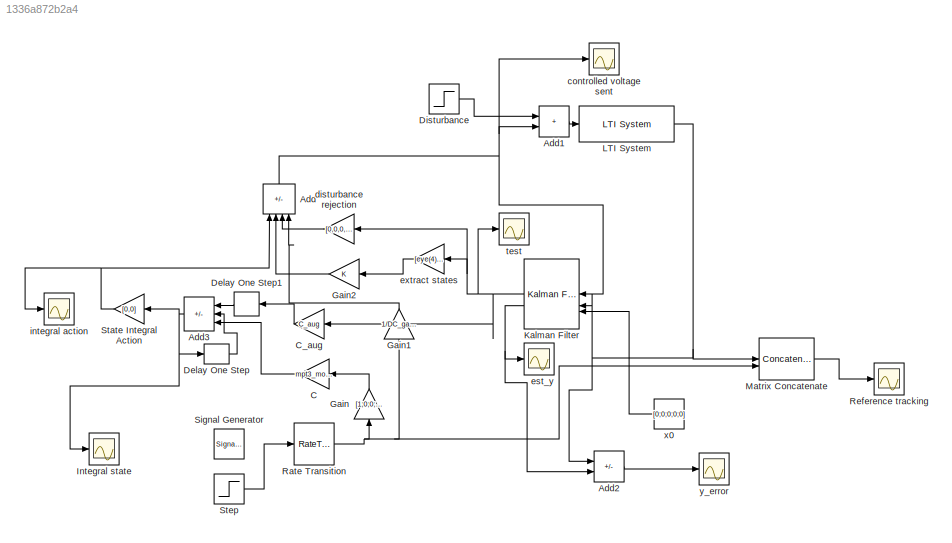
MODEL slx_1336a872b2a4
KIND model
CONFIG AbsTol = auto
CONFIG EnableMultiTasking = on
CONFIG FixedStep = 0.01
CONFIG MaxStep = auto
CONFIG MinStep = auto
CONFIG RelTol = 1e-3
CONFIG SampleTimeConstraint = Unconstrained
CONFIG SolverName = FixedStepDiscrete
CONFIG StartTime = 0.0
CONFIG StopTime = 200
BLOCK [Sum] Add
  IconShape = rectangular
  Inputs = ---+
  NameLocation = left
BLOCK [Sum] Add1
  IconShape = rectangular
BLOCK [Sum] Add2
  IconShape = rectangular
  Inputs = +-
BLOCK [Sum] Add3
  IconShape = rectangular
  Inputs = ++-
  NameLocation = top
BLOCK [Gain] C
  Gain = mpt3_model.C
  Multiplication = Matrix(K*u)
BLOCK [Gain] C_aug
  Gain = C_aug
  Multiplication = Matrix(K*u)
BLOCK [Delay] Delay One Step
  DelayLength = 1
  InputPortMap = u0
  SampleTime = h
BLOCK [Delay] Delay One Step1
  DelayLength = 1
  InputPortMap = u0
  SampleTime = h
BLOCK [Step] Disturbance
  After = 0
  SampleTime = 0
  Time = 3
BLOCK [Gain] Gain
  Gain = [1;0;0;0]
  NameLocation = right
BLOCK [Gain] Gain1
  Gain = 1/DC_gain(1)
  NameLocation = right
BLOCK [Gain] Gain2
  Gain = K
  Multiplication = Matrix(K*u)
BLOCK [Scope] Integral state 
  Floating = off
  NumInputPorts = 1
  ScopeSpecificationString = Simulink.scopes.TimeScopeBlockCfg('CurrentConfiguration', extmgr.ConfigurationSet(extmgr.Configuration('Core','General UI',true),extmgr.Configuration('Core','Source UI',true),extmgr.Configuration('Sources','WiredSimulink',true,'DataLoggingVariableName','ScopeData3'),extmgr.Configuration('Visuals','Time Domain',true,'SerializedDisplays',{struct('MinYLimReal','-1376.3794','MaxYLimReal','152.93104','...<+1533ch>
BLOCK [Reference] Kalman Filter  REF=ctrlSharedLib/Kalman Filter
  SourceBlock = ctrlSharedLib/Kalman Filter
  SourceType = ctrlKalmanFilter
BLOCK [Reference] LTI System  REF=cstblocks/LTI System
  SourceBlock = cstblocks/LTI System
  SourceType = LTI Block
BLOCK [Concatenate] Matrix Concatenate
  ConcatenateDimension = 2
  NameLocation = top
BLOCK [RateTransition] Rate Transition
  OutPortSampleTime = h
BLOCK [Scope] Reference tracking
  Floating = off
  NumInputPorts = 1
  ScopeSpecificationString = Simulink.scopes.TimeScopeBlockCfg('CurrentConfiguration', extmgr.ConfigurationSet(extmgr.Configuration('Core','General UI',true),extmgr.Configuration('Core','Source UI',true),extmgr.Configuration('Sources','WiredSimulink',true,'DataLoggingVariableName','ScopeData1'),extmgr.Configuration('Visuals','Time Domain',true,'SerializedDisplays',{struct('MinYLimReal','-0.77861','MaxYLimReal','1.19762','YLab...<+1566ch>
BLOCK [SignalGenerator] Signal Generator
  Amplitude = pi/6
  Frequency = 0.02
  WaveForm = square
BLOCK [Gain] State Integral Action
  Gain = [0,0]
  Multiplication = Matrix(K*u)
BLOCK [Step] Step
  SampleTime = 0
  Time = 5
BLOCK [Scope] controlled voltage sent
  Floating = off
  NumInputPorts = 1
  ScopeSpecificationString = Simulink.scopes.TimeScopeBlockCfg('CurrentConfiguration', extmgr.ConfigurationSet(extmgr.Configuration('Core','General UI',true),extmgr.Configuration('Core','Source UI',true),extmgr.Configuration('Sources','WiredSimulink',true,'DataLoggingVariableName','ScopeData1'),extmgr.Configuration('Visuals','Time Domain',true,'SerializedDisplays',{struct('MinYLimReal','-2.5','MaxYLimReal','2.5','YLabelReal',...<+1536ch>
BLOCK [Gain] disturbance rejection
  Gain = [0,0,0,0,1]
  Multiplication = Matrix(K*u)
BLOCK [Scope] est_y
  Floating = off
  NumInputPorts = 1
  ScopeSpecificationString = Simulink.scopes.TimeScopeBlockCfg('CurrentConfiguration', extmgr.ConfigurationSet(extmgr.Configuration('Core','General UI',true),extmgr.Configuration('Core','Source UI',true),extmgr.Configuration('Sources','WiredSimulink',true,'DataLoggingVariableName','ScopeData1'),extmgr.Configuration('Visuals','Time Domain',true,'SerializedDisplays',{struct('MinYLimReal','-1.87665','MaxYLimReal','1.19415','YLab...<+1558ch>
BLOCK [Gain] extract states
  Gain = [eye(4),zeros(4,1)]
  Multiplication = Matrix(K*u)
BLOCK [Scope] integral action
  Floating = off
  NumInputPorts = 1
  ScopeSpecificationString = Simulink.scopes.TimeScopeBlockCfg('CurrentConfiguration', extmgr.ConfigurationSet(extmgr.Configuration('Core','General UI',true),extmgr.Configuration('Core','Source UI',true),extmgr.Configuration('Sources','WiredSimulink',true,'DataLoggingVariableName','ScopeData2'),extmgr.Configuration('Visuals','Time Domain',true,'SerializedDisplays',{struct('MinYLimReal','-1.00000','MaxYLimReal','1.00000','YLab...<+1523ch>
BLOCK [Scope] test
  Floating = off
  NumInputPorts = 1
  ScopeSpecificationString = Simulink.scopes.TimeScopeBlockCfg('CurrentConfiguration', extmgr.ConfigurationSet(extmgr.Configuration('Core','General UI',true),extmgr.Configuration('Core','Source UI',true),extmgr.Configuration('Sources','WiredSimulink',true,'DataLoggingVariableName','ScopeData1'),extmgr.Configuration('Visuals','Time Domain',true,'SerializedDisplays',{struct('MinYLimReal','-29.43645','MaxYLimReal','4.85503','YLa...<+1620ch>
BLOCK [Constant] x0
  Value = [0;0;0;0;0]
BLOCK [Scope] y_error
  Floating = off
  NumInputPorts = 1
  ScopeSpecificationString = Simulink.scopes.TimeScopeBlockCfg('CurrentConfiguration', extmgr.ConfigurationSet(extmgr.Configuration('Core','General UI',true),extmgr.Configuration('Core','Source UI',true),extmgr.Configuration('Sources','WiredSimulink',true,'DataLoggingVariableName','ScopeData3'),extmgr.Configuration('Visuals','Time Domain',true,'SerializedDisplays',{struct('MinYLimReal','-0.000000000011','MaxYLimReal','0.00000...<+1592ch>
LINE Add1:1 -> LTI System:1
LINE Add2:1 -> y_error:1
NET Add3:1 -> Delay One Step:1, Integral state :1, State Integral Action:1
NET Add:1 -> Add1:2, Kalman Filter:1, controlled voltage sent:1
LINE C:1 -> Add3:3
LINE C_aug:1 -> Delay One Step1:1
LINE Delay One Step1:1 -> Add3:1
LINE Delay One Step:1 -> Add3:2
LINE Disturbance:1 -> Add1:1
LINE Gain1:1 -> Add:4
LINE Gain2:1 -> Add:2
LINE Gain:1 -> C:1
NET Kalman Filter:1 -> C_aug:1, disturbance rejection:1, extract states:1, test:1
NET Kalman Filter:2 -> Add2:2, est_y:1
NET LTI System:1 -> Add2:1, Kalman Filter:2, Matrix Concatenate:1
LINE Matrix Concatenate:1 -> Reference tracking:1
NET Rate Transition:1 -> Gain1:1, Gain:1, Matrix Concatenate:2
NET State Integral Action:1 -> Add:1, integral action:1
LINE Step:1 -> Rate Transition:1
LINE disturbance rejection:1 -> Add:3
LINE extract states:1 -> Gain2:1
LINE x0:1 -> Kalman Filter:3
note: NET lines group one-source signal fan-out (src -> all destinations, sorted); 1:1 wires keep LINE
